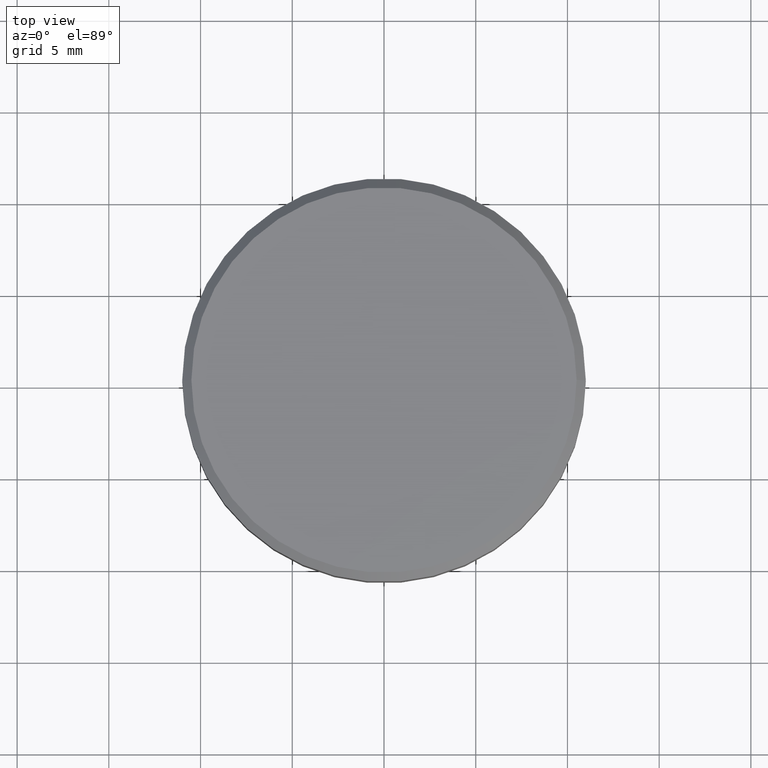
[diagram: clean part render]
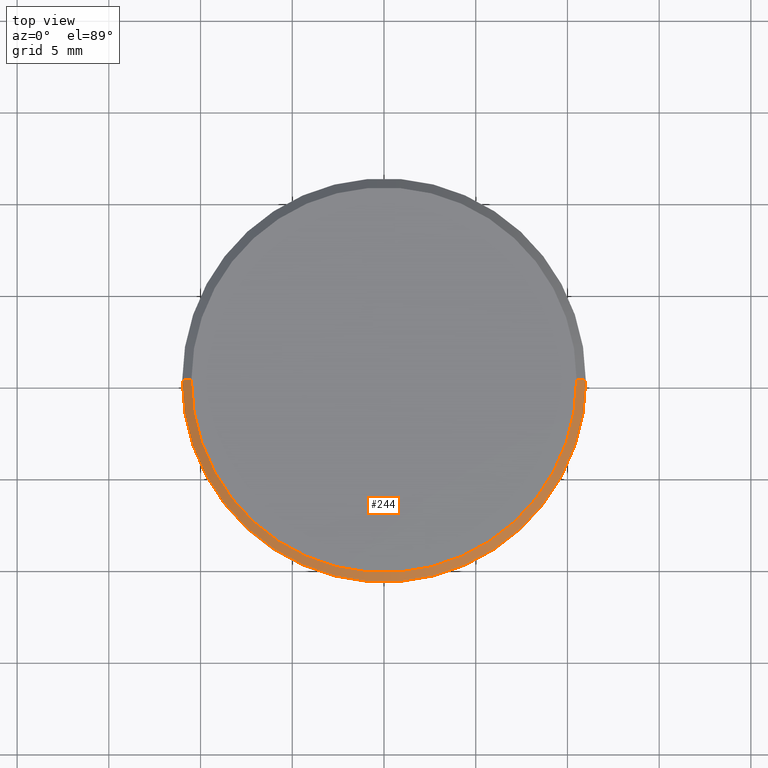
[diagram: same view with one face highlighted and labeled with its STEP entity id]
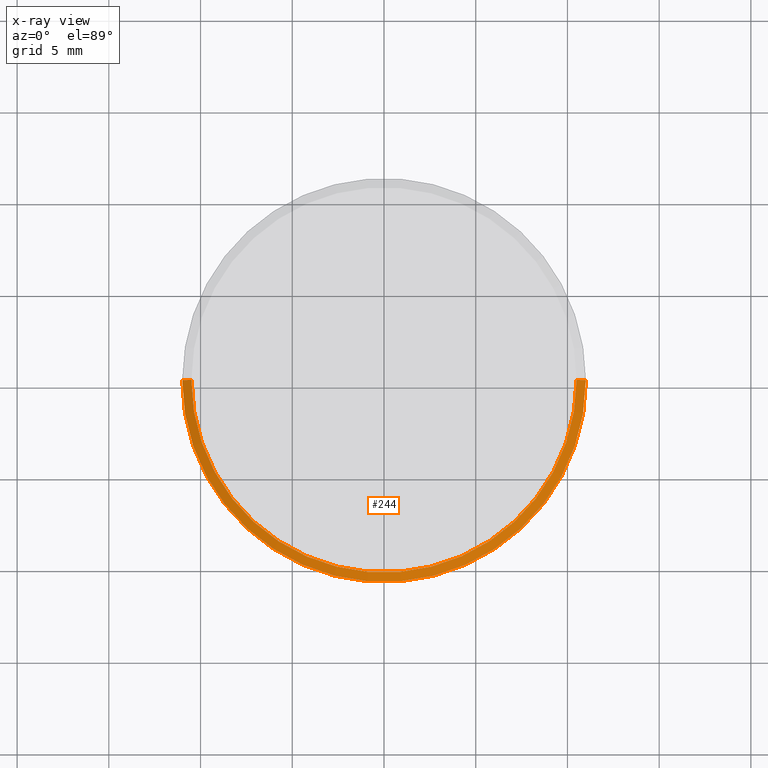
[diagram: x-ray of the same camera — body ghosted, the highlighted face saturated]
A machine part, top view. The second image highlights one B-rep face of the part: STEP entity #244.
The next image is the same camera in x-ray: the body ghosted, the highlighted face saturated — about 0% of this face is hidden behind the body in this view.
In plain terms, the highlighted conical surface has half-angle 45 deg.
Its self-contained STEP definition (entity closure, byte-faithful):
#2 = AXIS2_PLACEMENT_3D ( 'NONE', #397, #270, #399 ) ;
#7 = EDGE_CURVE ( 'NONE', #39, #184, #30, .T. ) ;
#21 = VERTEX_POINT ( 'NONE', #390 ) ;
#24 = CIRCLE ( 'NONE', #2, 11.00000000000000178 ) ;
#30 = LINE ( 'NONE', #252, #153 ) ;
#36 = ORIENTED_EDGE ( 'NONE', *, *, #7, .T. ) ;
#38 = ORIENTED_EDGE ( 'NONE', *, *, #134, .F. ) ;
#39 = VERTEX_POINT ( 'NONE', #393 ) ;
#48 = CARTESIAN_POINT ( 'NONE',  ( 0.000000000000000000, 0.000000000000000000, 0.000000000000000000 ) ) ;
#70 = EDGE_CURVE ( 'NONE', #398, #21, #310, .T. ) ;
#79 = DIRECTION ( 'NONE',  ( 1.000000000000000000, 0.000000000000000000, 0.000000000000000000 ) ) ;
#86 = VECTOR ( 'NONE', #121, 1000.000000000000114 ) ;
#121 = DIRECTION ( 'NONE',  ( 0.7071067811865474617, 8.659560562354932858E-17, -0.7071067811865474617 ) ) ;
#134 = EDGE_CURVE ( 'NONE', #21, #184, #24, .T. ) ;
#135 = ORIENTED_EDGE ( 'NONE', *, *, #70, .F. ) ;
#136 = CARTESIAN_POINT ( 'NONE',  ( 0.000000000000000000, 0.000000000000000000, 0.000000000000000000 ) ) ;
#149 = CARTESIAN_POINT ( 'NONE',  ( 10.50000000000001243, 1.285879139104722408E-15, 0.000000000000000000 ) ) ;
#153 = VECTOR ( 'NONE', #379, 1000.000000000000114 ) ;
#159 = CARTESIAN_POINT ( 'NONE',  ( -11.00000000000000178, 1.347111479062088602E-15, -0.4999999999999882871 ) ) ;
#184 = VERTEX_POINT ( 'NONE', #159 ) ;
#212 = DIRECTION ( 'NONE',  ( 0.000000000000000000, 0.000000000000000000, -1.000000000000000000 ) ) ;
#225 = CIRCLE ( 'NONE', #395, 10.50000000000001243 ) ;
#226 = DIRECTION ( 'NONE',  ( -1.000000000000000000, 0.000000000000000000, 0.000000000000000000 ) ) ;
#244 = ADVANCED_FACE ( 'NONE', ( #263 ), #351, .T. ) ;
#252 = CARTESIAN_POINT ( 'NONE',  ( -10.50000000000001243, 0.000000000000000000, 0.000000000000000000 ) ) ;
#260 = DIRECTION ( 'NONE',  ( -0.000000000000000000, -0.000000000000000000, 1.000000000000000000 ) ) ;
#263 = FACE_OUTER_BOUND ( 'NONE', #325, .T. ) ;
#270 = DIRECTION ( 'NONE',  ( 0.000000000000000000, 0.000000000000000000, -1.000000000000000000 ) ) ;
#310 = LINE ( 'NONE', #149, #86 ) ;
#325 = EDGE_LOOP ( 'NONE', ( #135, #383, #36, #38 ) ) ;
#349 = EDGE_CURVE ( 'NONE', #39, #398, #225, .T. ) ;
#351 = CONICAL_SURFACE ( 'NONE', #385, 10.50000000000001243, 0.7853981633974482790 ) ;
#371 = CARTESIAN_POINT ( 'NONE',  ( 10.50000000000001243, 1.316495309083405604E-15, 0.000000000000000000 ) ) ;
#379 = DIRECTION ( 'NONE',  ( -0.7071067811865474617, 0.000000000000000000, -0.7071067811865474617 ) ) ;
#383 = ORIENTED_EDGE ( 'NONE', *, *, #349, .F. ) ;
#385 = AXIS2_PLACEMENT_3D ( 'NONE', #48, #212, #226 ) ;
#390 = CARTESIAN_POINT ( 'NONE',  ( 11.00000000000000178, 0.000000000000000000, -0.4999999999999882871 ) ) ;
#393 = CARTESIAN_POINT ( 'NONE',  ( -10.50000000000001243, 0.000000000000000000, 0.000000000000000000 ) ) ;
#395 = AXIS2_PLACEMENT_3D ( 'NONE', #136, #260, #79 ) ;
#397 = CARTESIAN_POINT ( 'NONE',  ( 0.000000000000000000, 0.000000000000000000, -0.4999999999999882871 ) ) ;
#398 = VERTEX_POINT ( 'NONE', #371 ) ;
#399 = DIRECTION ( 'NONE',  ( 1.000000000000000000, 0.000000000000000000, 0.000000000000000000 ) ) ;